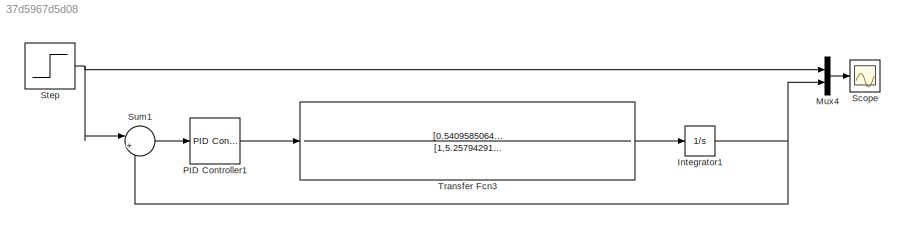
MODEL slx_37d5967d5d08
KIND model
CONFIG AbsTol = auto
CONFIG EnableMultiTasking = off
CONFIG FixedStep = auto
CONFIG MaxStep = auto
CONFIG MinStep = auto
CONFIG RelTol = 1e-3
CONFIG SampleTimeConstraint = Unconstrained
CONFIG SolverName = VariableStepAuto
CONFIG StartTime = 0.0
CONFIG StopTime = 30
BLOCK [Integrator] Integrator1
BLOCK [Mux] Mux4
  DisplayOption = bar
  Inputs = 2
BLOCK [Reference] PID Controller1  REF=slpidlib/PID Controller
  LibrarySourceBlock = simulink/Continuous/PID Controller
  SourceBlock = slpidlib/PID Controller
  SourceType = PID 1dof
BLOCK [Scope] Scope
  Floating = off
  NumInputPorts = 1
  ScopeSpecificationString = Simulink.scopes.TimeScopeBlockCfg('CurrentConfiguration', extmgr.ConfigurationSet(extmgr.Configuration('Core','General UI',true),extmgr.Configuration('Core','Source UI',true),extmgr.Configuration('Sources','WiredSimulink',true),extmgr.Configuration('Visuals','Time Domain',true,'SerializedDisplays',{struct('MinYLimReal','-0.16709','MaxYLimReal','1.50384','YLabelReal','','MinYLimMag','0.00000','MaxY...<+1483ch>
BLOCK [Step] Step
  SampleTime = 0
BLOCK [Sum] Sum1
  Inputs = |+-
BLOCK [TransferFcn] Transfer Fcn3
  Denominator = [1,5.257942916311363,3.394160382462522]
  Numerator = [0.540958506417956,3.400429160444461]
NET Integrator1:1 -> Mux4:2, Sum1:2
LINE Mux4:1 -> Scope:1
LINE PID Controller1:1 -> Transfer Fcn3:1
NET Step:1 -> Mux4:1, Sum1:1
LINE Sum1:1 -> PID Controller1:1
LINE Transfer Fcn3:1 -> Integrator1:1
note: NET lines group one-source signal fan-out (src -> all destinations, sorted); 1:1 wires keep LINE
